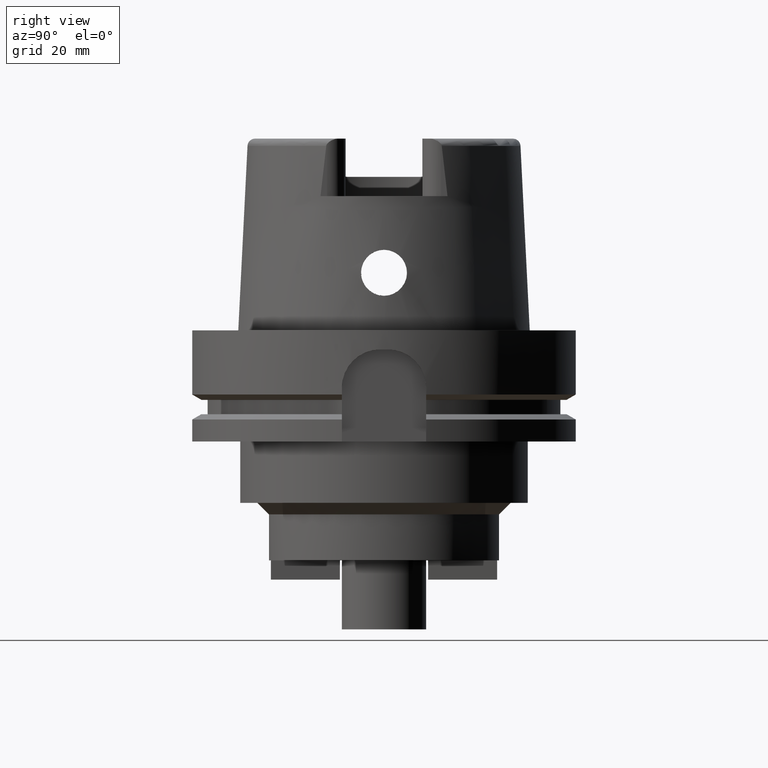
[diagram: clean part render]
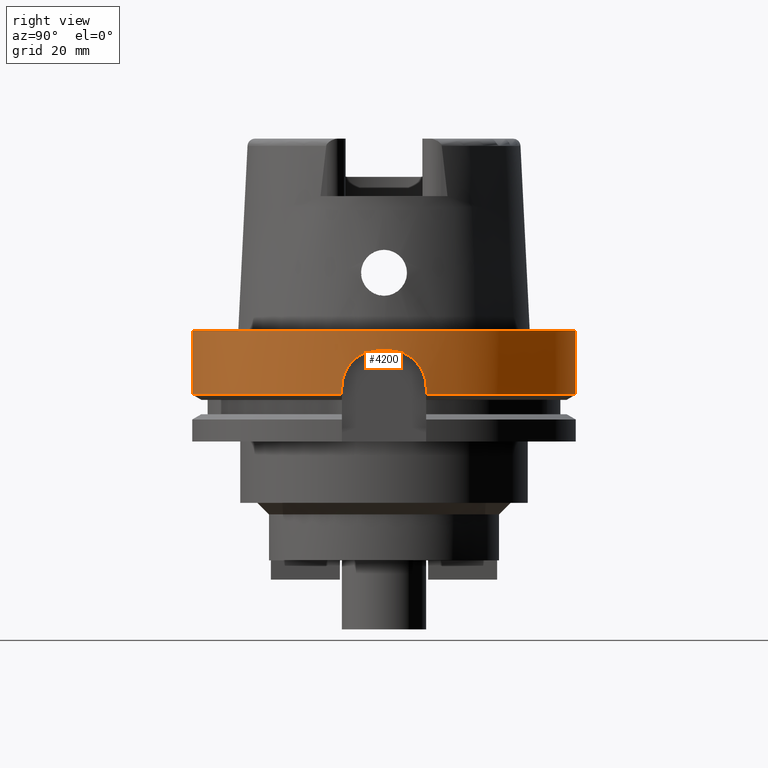
[diagram: same view with one face highlighted and labeled with its STEP entity id]
A machine part, right view. The second image highlights one B-rep face of the part: STEP entity #4200.
In plain terms, the highlighted cylindrical surface (partial cylindrical patch) has radius 50 mm, axis along (0, 0, 1).
Its self-contained STEP definition (entity closure, byte-faithful):
#1601=DIRECTION('',(0.E0,2.969006079282E-14,-1.E0));
#1602=VECTOR('',#1601,1.675240473581E1);
#1603=CARTESIAN_POINT('',(0.E0,-5.E1,-1.563194018672E-13));
#1604=LINE('',#1603,#1602);
#1654=CARTESIAN_POINT('',(4.877499359303E1,1.1E1,-1.675240473581E1));
#1659=CARTESIAN_POINT('',(0.E0,0.E0,-1.675240473581E1));
#1660=DIRECTION('',(0.E0,0.E0,1.E0));
#1661=DIRECTION('',(9.754998718606E-1,2.2E-1,0.E0));
#1662=AXIS2_PLACEMENT_3D('',#1659,#1660,#1661);
#1803=CARTESIAN_POINT('',(4.998999899980E1,-1.E0,-5.E0));
#1804=CARTESIAN_POINT('',(4.997695809253E1,-1.651914941312E0,-5.E0));
#1805=CARTESIAN_POINT('',(4.992611708299E1,-2.934341111095E0,
-5.124728941694E0));
#1806=CARTESIAN_POINT('',(4.977789112498E1,-4.827247994397E0,
-5.690603842358E0));
#1807=CARTESIAN_POINT('',(4.957457902509E1,-6.578842654573E0,
-6.622784493051E0));
#1808=CARTESIAN_POINT('',(4.934527450601E1,-8.106103719795E0,
-7.873064108799E0));
#1809=CARTESIAN_POINT('',(4.912022300181E1,-9.360586492821E0,-9.396081057E0));
#1810=CARTESIAN_POINT('',(4.892944009841E1,-1.030074341842E1,
-1.115013804786E1));
#1811=CARTESIAN_POINT('',(4.880379105526E1,-1.087346692168E1,
-1.305264467328E1));
#1812=CARTESIAN_POINT('',(4.877499359303E1,-1.1E1,-1.434294322813E1));
#1813=CARTESIAN_POINT('',(4.877499359303E1,-1.1E1,-1.5E1));
#1818=DIRECTION('',(-5.027793947017E-13,6.690209687563E-14,-1.E0));
#1819=VECTOR('',#1818,1.752404735809E0);
#1820=CARTESIAN_POINT('',(4.877499359303E1,-1.1E1,-1.5E1));
#1821=LINE('',#1820,#1819);
#1825=DIRECTION('',(0.E0,-2.969006079282E-14,-1.E0));
#1826=VECTOR('',#1825,1.675240473581E1);
#1827=CARTESIAN_POINT('',(0.E0,5.E1,-1.563194018672E-13));
#1828=LINE('',#1827,#1826);
#1832=DIRECTION('',(5.027793947017E-13,7.095676941355E-14,1.E0));
#1833=VECTOR('',#1832,1.752404735809E0);
#1834=CARTESIAN_POINT('',(4.877499359303E1,1.1E1,-1.675240473581E1));
#1835=LINE('',#1834,#1833);
#1839=CARTESIAN_POINT('',(4.877499359303E1,1.1E1,-1.5E1));
#1840=CARTESIAN_POINT('',(4.877499359303E1,1.1E1,-1.434984744409E1));
#1841=CARTESIAN_POINT('',(4.880320268475E1,1.087602698795E1,-1.307136026675E1));
#1842=CARTESIAN_POINT('',(4.892679796394E1,1.031301171472E1,-1.118204285681E1));
#1843=CARTESIAN_POINT('',(4.911563419183E1,9.384162747861E0,-9.432260097874E0));
#1844=CARTESIAN_POINT('',(4.933958016211E1,8.140217859751E0,-7.907420363888E0));
#1845=CARTESIAN_POINT('',(4.956937110059E1,6.617803105436E0,-6.648525502781E0));
#1846=CARTESIAN_POINT('',(4.977438907170E1,4.864173629740E0,-5.705070251168E0));
#1847=CARTESIAN_POINT('',(4.992494280617E1,2.958157340362E0,-5.128157079505E0));
#1848=CARTESIAN_POINT('',(4.997677770009E1,1.660932759336E0,-5.E0));
#1849=CARTESIAN_POINT('',(4.998999899980E1,1.E0,-5.E0));
#1854=CARTESIAN_POINT('',(0.E0,0.E0,-5.E0));
#1855=DIRECTION('',(0.E0,0.E0,1.E0));
#1856=DIRECTION('',(9.997999799960E-1,-2.E-2,0.E0));
#1857=AXIS2_PLACEMENT_3D('',#1854,#1855,#1856);
#1908=CARTESIAN_POINT('',(0.E0,0.E0,-1.675240473581E1));
#1909=DIRECTION('',(0.E0,0.E0,1.E0));
#1910=DIRECTION('',(0.E0,-1.E0,0.E0));
#1911=AXIS2_PLACEMENT_3D('',#1908,#1909,#1910);
#2062=CARTESIAN_POINT('',(0.E0,0.E0,-1.989519660128E-13));
#2063=DIRECTION('',(0.E0,0.E0,-1.E0));
#2064=DIRECTION('',(0.E0,1.E0,0.E0));
#2065=AXIS2_PLACEMENT_3D('',#2062,#2063,#2064);
#2780=CARTESIAN_POINT('',(0.E0,-5.E1,-1.675240473581E1));
#2781=VERTEX_POINT('',#2780);
#2782=CARTESIAN_POINT('',(4.877499359303E1,-1.1E1,-1.675240473581E1));
#2783=VERTEX_POINT('',#2782);
#2784=VERTEX_POINT('',#1654);
#2785=CARTESIAN_POINT('',(1.065814103640E-14,5.E1,-1.675240473581E1));
#2786=VERTEX_POINT('',#2785);
#2788=CARTESIAN_POINT('',(0.E0,5.E1,-1.563194018672E-13));
#2789=VERTEX_POINT('',#2788);
#2790=CARTESIAN_POINT('',(0.E0,-5.E1,-1.989519660128E-13));
#2791=VERTEX_POINT('',#2790);
#2794=CARTESIAN_POINT('',(4.998999899980E1,-1.E0,-5.E0));
#2795=CARTESIAN_POINT('',(4.998999899980E1,1.E0,-5.E0));
#2796=VERTEX_POINT('',#2794);
#2797=VERTEX_POINT('',#2795);
#2798=VERTEX_POINT('',#1813);
#2799=CARTESIAN_POINT('',(4.877499359303E1,1.1E1,-1.5E1));
#2800=VERTEX_POINT('',#2799);
#4178=CARTESIAN_POINT('',(0.E0,0.E0,-8.44E1));
#4179=DIRECTION('',(0.E0,0.E0,1.E0));
#4180=DIRECTION('',(0.E0,1.E0,0.E0));
#4181=AXIS2_PLACEMENT_3D('',#4178,#4179,#4180);
#4182=CYLINDRICAL_SURFACE('',#4181,5.E1);
#4184=ORIENTED_EDGE('',*,*,#4183,.F.);
#4186=ORIENTED_EDGE('',*,*,#4185,.T.);
#4187=ORIENTED_EDGE('',*,*,#3928,.T.);
#4189=ORIENTED_EDGE('',*,*,#4188,.F.);
#4190=ORIENTED_EDGE('',*,*,#4084,.F.);
#4192=ORIENTED_EDGE('',*,*,#4191,.F.);
#4193=ORIENTED_EDGE('',*,*,#4080,.T.);
#4194=ORIENTED_EDGE('',*,*,#4110,.F.);
#4195=ORIENTED_EDGE('',*,*,#3876,.T.);
#4197=ORIENTED_EDGE('',*,*,#4196,.T.);
#4198=EDGE_LOOP('',(#4184,#4186,#4187,#4189,#4190,#4192,#4193,#4194,#4195,
#4197));
#4199=FACE_OUTER_BOUND('',#4198,.F.);
#1663=CIRCLE('',#1662,5.E1);
#1814=B_SPLINE_CURVE_WITH_KNOTS('',3,(#1803,#1804,#1805,#1806,#1807,#1808,#1809,
#1810,#1811,#1812,#1813),.UNSPECIFIED.,.F.,.F.,(4,1,1,1,1,1,1,1,4),(0.E0,
1.25E-1,2.5E-1,3.75E-1,5.E-1,6.25E-1,7.5E-1,8.75E-1,1.E0),.UNSPECIFIED.);
#1850=B_SPLINE_CURVE_WITH_KNOTS('',3,(#1839,#1840,#1841,#1842,#1843,#1844,#1845,
#1846,#1847,#1848,#1849),.UNSPECIFIED.,.F.,.F.,(4,1,1,1,1,1,1,1,4),(0.E0,
1.25E-1,2.5E-1,3.75E-1,5.E-1,6.25E-1,7.5E-1,8.75E-1,1.E0),.UNSPECIFIED.);
#1858=CIRCLE('',#1857,5.E1);
#1912=CIRCLE('',#1911,5.E1);
#2066=CIRCLE('',#2065,5.E1);
#3876=EDGE_CURVE('',#2784,#2800,#1835,.T.);
#3928=EDGE_CURVE('',#2798,#2783,#1821,.T.);
#4080=EDGE_CURVE('',#2789,#2786,#1828,.T.);
#4084=EDGE_CURVE('',#2791,#2781,#1604,.T.);
#4110=EDGE_CURVE('',#2784,#2786,#1663,.T.);
#4183=EDGE_CURVE('',#2796,#2797,#1858,.T.);
#4185=EDGE_CURVE('',#2796,#2798,#1814,.T.);
#4188=EDGE_CURVE('',#2781,#2783,#1912,.T.);
#4191=EDGE_CURVE('',#2789,#2791,#2066,.T.);
#4196=EDGE_CURVE('',#2800,#2797,#1850,.T.);
#4200=ADVANCED_FACE('',(#4199),#4182,.T.);